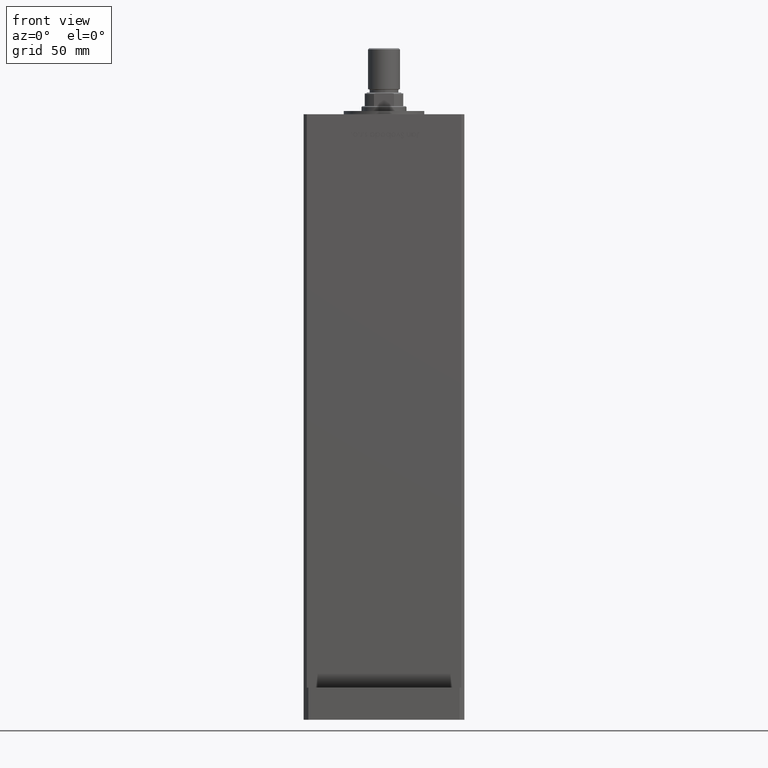
[diagram: clean part render]
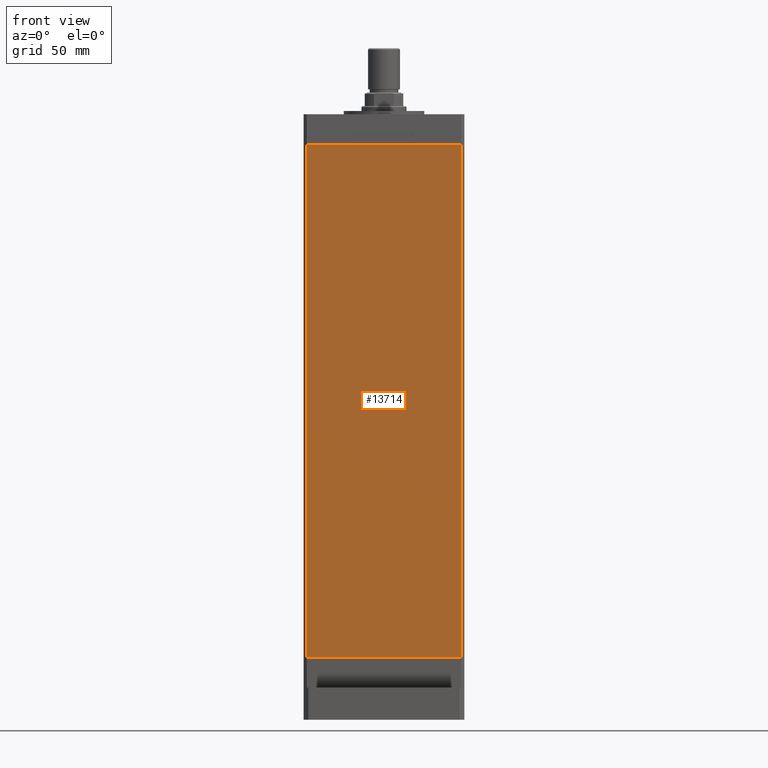
[diagram: same view with one face highlighted and labeled with its STEP entity id]
A machine part, front view. The second image highlights one B-rep face of the part: STEP entity #13714.
In plain terms, the highlighted planar face has unit normal (0, 1, 0).
Its self-contained STEP definition (entity closure, byte-faithful):
#708 = LINE ( 'NONE', #22294, #3342 ) ;
#2359 = CARTESIAN_POINT ( 'NONE',  ( -47.99999999999998579, -43.50000000000000000, 318.5000000000000000 ) ) ;
#3342 = VECTOR ( 'NONE', #47761, 1000.000000000000000 ) ;
#3824 = ORIENTED_EDGE ( 'NONE', *, *, #15338, .T. ) ;
#3976 = DIRECTION ( 'NONE',  ( -0.000000000000000000, -0.000000000000000000, -1.000000000000000000 ) ) ;
#5215 = VECTOR ( 'NONE', #47805, 1000.000000000000000 ) ;
#6860 = VERTEX_POINT ( 'NONE', #6881 ) ;
#6881 = CARTESIAN_POINT ( 'NONE',  ( 47.99999999999998579, -43.50000000000000000, 0.000000000000000000 ) ) ;
#7462 = VERTEX_POINT ( 'NONE', #14418 ) ;
#7638 = VECTOR ( 'NONE', #38063, 1000.000000000000000 ) ;
#9279 = LINE ( 'NONE', #46301, #7638 ) ;
#13714 = ADVANCED_FACE ( 'NONE', ( #15946 ), #32652, .F. ) ;
#14418 = CARTESIAN_POINT ( 'NONE',  ( 47.99999999999998579, -43.50000000000000000, 318.5000000000000000 ) ) ;
#15338 = EDGE_CURVE ( 'NONE', #30282, #26549, #36297, .T. ) ;
#15393 = CARTESIAN_POINT ( 'NONE',  ( -47.99999999999998579, -43.50000000000000000, 318.5000000000000000 ) ) ;
#15946 = FACE_OUTER_BOUND ( 'NONE', #31151, .T. ) ;
#16559 = CARTESIAN_POINT ( 'NONE',  ( -47.99999999999998579, -43.50000000000000000, 318.5000000000000000 ) ) ;
#22294 = CARTESIAN_POINT ( 'NONE',  ( -47.99999999999998579, -43.50000000000000000, 0.000000000000000000 ) ) ;
#22501 = EDGE_CURVE ( 'NONE', #30282, #7462, #9279, .T. ) ;
#23814 = ORIENTED_EDGE ( 'NONE', *, *, #45665, .T. ) ;
#25061 = LINE ( 'NONE', #25336, #36932 ) ;
#25336 = CARTESIAN_POINT ( 'NONE',  ( 47.99999999999998579, -43.50000000000000000, 318.5000000000000000 ) ) ;
#26549 = VERTEX_POINT ( 'NONE', #35487 ) ;
#28127 = ORIENTED_EDGE ( 'NONE', *, *, #31912, .F. ) ;
#28550 = DIRECTION ( 'NONE',  ( 0.000000000000000000, -0.000000000000000000, 1.000000000000000000 ) ) ;
#30282 = VERTEX_POINT ( 'NONE', #16559 ) ;
#31151 = EDGE_LOOP ( 'NONE', ( #23814, #28127, #43545, #3824 ) ) ;
#31912 = EDGE_CURVE ( 'NONE', #7462, #6860, #25061, .T. ) ;
#32652 = PLANE ( 'NONE',  #38531 ) ;
#35487 = CARTESIAN_POINT ( 'NONE',  ( -47.99999999999998579, -43.50000000000000000, 0.000000000000000000 ) ) ;
#36297 = LINE ( 'NONE', #2359, #5215 ) ;
#36932 = VECTOR ( 'NONE', #3976, 1000.000000000000000 ) ;
#38063 = DIRECTION ( 'NONE',  ( 1.000000000000000000, 0.000000000000000000, 0.000000000000000000 ) ) ;
#38531 = AXIS2_PLACEMENT_3D ( 'NONE', #15393, #49369, #28550 ) ;
#43545 = ORIENTED_EDGE ( 'NONE', *, *, #22501, .F. ) ;
#45665 = EDGE_CURVE ( 'NONE', #26549, #6860, #708, .T. ) ;
#46301 = CARTESIAN_POINT ( 'NONE',  ( -47.99999999999998579, -43.50000000000000000, 318.5000000000000000 ) ) ;
#47761 = DIRECTION ( 'NONE',  ( 1.000000000000000000, 0.000000000000000000, 0.000000000000000000 ) ) ;
#47805 = DIRECTION ( 'NONE',  ( -0.000000000000000000, -0.000000000000000000, -1.000000000000000000 ) ) ;
#49369 = DIRECTION ( 'NONE',  ( 0.000000000000000000, 1.000000000000000000, 0.000000000000000000 ) ) ;